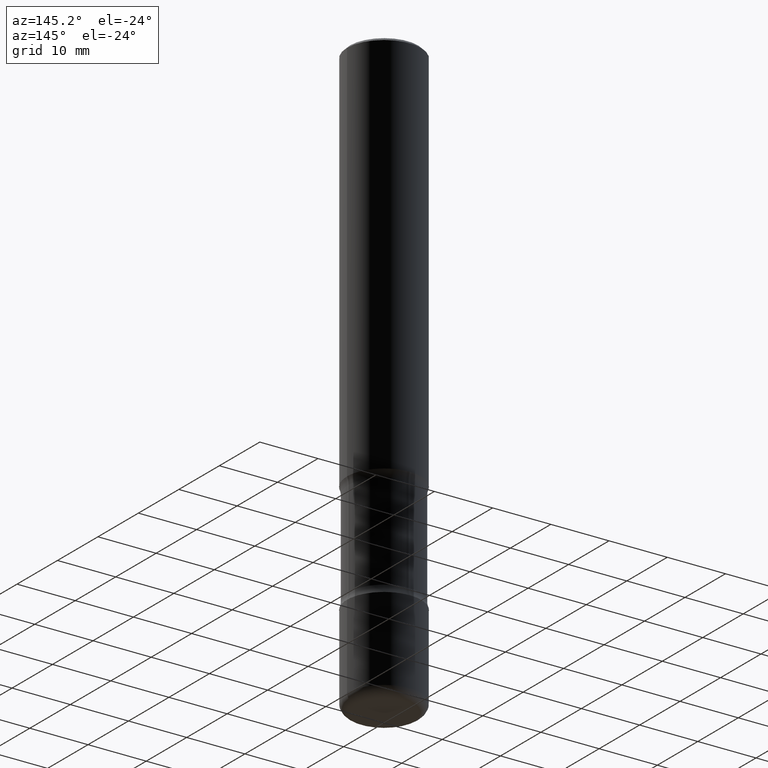
[diagram: clean part render]
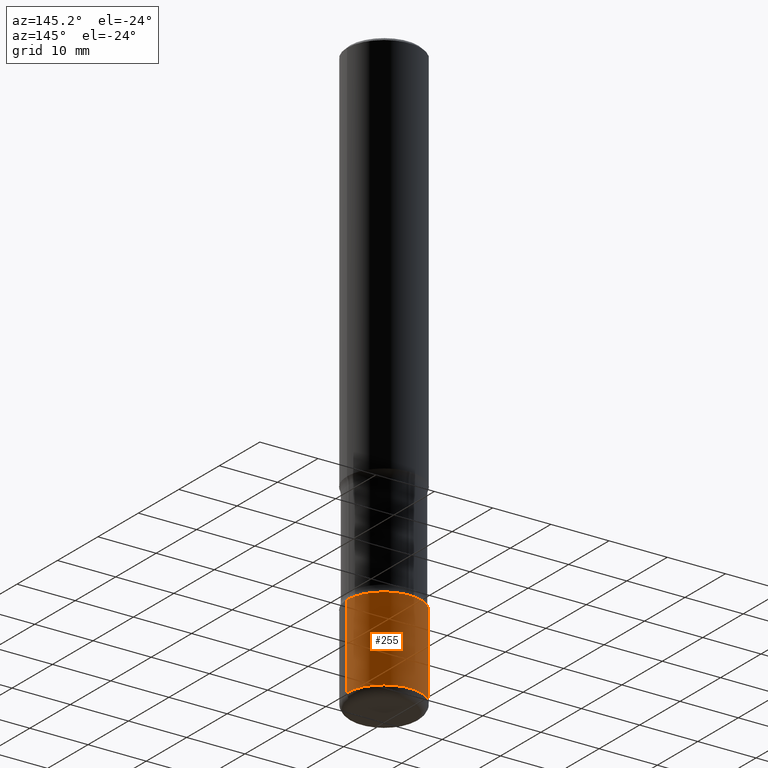
[diagram: same view with one face highlighted and labeled with its STEP entity id]
A machine part, auxiliary view. The second image highlights one B-rep face of the part: STEP entity #255.
In plain terms, the highlighted cylindrical surface (partial cylindrical patch) has radius 6.35 mm, axis along (-0, 0, 1).
Its self-contained STEP definition (entity closure, byte-faithful):
#10 = CARTESIAN_POINT ( 'NONE',  ( 0.000000000000000000, 0.000000000000000000, 0.000000000000000000 ) ) ;
#33 = DIRECTION ( 'NONE',  ( -2.445468806185136597E-29, 3.491481338843145583E-15, 1.000000000000000000 ) ) ;
#40 = DIRECTION ( 'NONE',  ( 1.000000000000000000, -6.982962677686262766E-15, 0.000000000000000000 ) ) ;
#92 = CARTESIAN_POINT ( 'NONE',  ( 8.253457220874836014E-29, -1.178374951859561452E-14, -3.375000000000000000 ) ) ;
#95 = VERTEX_POINT ( 'NONE', #560 ) ;
#100 = DIRECTION ( 'NONE',  ( -2.445468806185136877E-29, 3.491481338843145188E-15, 1.000000000000000000 ) ) ;
#144 = EDGE_CURVE ( 'NONE', #512, #95, #575, .T. ) ;
#161 = CARTESIAN_POINT ( 'NONE',  ( -0.2500000000000000000, 1.776356839400250465E-15, -1.229733772563726445E-29 ) ) ;
#202 = ORIENTED_EDGE ( 'NONE', *, *, #419, .T. ) ;
#214 = ORIENTED_EDGE ( 'NONE', *, *, #144, .T. ) ;
#237 = AXIS2_PLACEMENT_3D ( 'NONE', #501, #803, #431 ) ;
#255 = ADVANCED_FACE ( 'NONE', ( #764 ), #268, .T. ) ;
#261 = VECTOR ( 'NONE', #100, 39.37007874015748143 ) ;
#268 = CYLINDRICAL_SURFACE ( 'NONE', #734, 0.2500000000000000000 ) ;
#274 = AXIS2_PLACEMENT_3D ( 'NONE', #92, #33, #40 ) ;
#284 = ORIENTED_EDGE ( 'NONE', *, *, #727, .F. ) ;
#337 = EDGE_LOOP ( 'NONE', ( #214, #202, #378, #284 ) ) ;
#366 = EDGE_CURVE ( 'NONE', #587, #713, #669, .T. ) ;
#376 = CARTESIAN_POINT ( 'NONE',  ( -0.2500000000000000000, -1.099373615741855222E-14, -3.375000000000000000 ) ) ;
#378 = ORIENTED_EDGE ( 'NONE', *, *, #366, .F. ) ;
#381 = DIRECTION ( 'NONE',  ( -2.445468806185136877E-29, 3.491481338843145188E-15, 1.000000000000000000 ) ) ;
#419 = EDGE_CURVE ( 'NONE', #95, #713, #782, .T. ) ;
#431 = DIRECTION ( 'NONE',  ( 1.000000000000000000, -6.982962677686263555E-15, 0.000000000000000000 ) ) ;
#443 = DIRECTION ( 'NONE',  ( -2.445468806185136597E-29, 3.491481338843145583E-15, 1.000000000000000000 ) ) ;
#501 = CARTESIAN_POINT ( 'NONE',  ( 9.635147096369438236E-29, -1.375643647504199401E-14, -3.939999999999999947 ) ) ;
#506 = LINE ( 'NONE', #633, #553 ) ;
#510 = DIRECTION ( 'NONE',  ( 1.000000000000000000, -6.982962677686266711E-15, 4.876176775795935793E-29 ) ) ;
#512 = VERTEX_POINT ( 'NONE', #805 ) ;
#553 = VECTOR ( 'NONE', #381, 39.37007874015748143 ) ;
#560 = CARTESIAN_POINT ( 'NONE',  ( -0.2499999999999999167, -1.198007963564174513E-14, -3.939999999999999947 ) ) ;
#575 = CIRCLE ( 'NONE', #237, 0.2499999999999999722 ) ;
#587 = VERTEX_POINT ( 'NONE', #742 ) ;
#633 = CARTESIAN_POINT ( 'NONE',  ( 0.2500000000000000000, -1.745740669421566678E-15, 1.219044193948983948E-29 ) ) ;
#669 = CIRCLE ( 'NONE', #274, 0.2500000000000000000 ) ;
#713 = VERTEX_POINT ( 'NONE', #376 ) ;
#727 = EDGE_CURVE ( 'NONE', #512, #587, #506, .T. ) ;
#734 = AXIS2_PLACEMENT_3D ( 'NONE', #10, #443, #510 ) ;
#742 = CARTESIAN_POINT ( 'NONE',  ( 0.2500000000000000000, -1.352949018801718119E-14, -3.375000000000000000 ) ) ;
#764 = FACE_OUTER_BOUND ( 'NONE', #337, .T. ) ;
#782 = LINE ( 'NONE', #161, #261 ) ;
#803 = DIRECTION ( 'NONE',  ( -2.445468806185136597E-29, 3.491481338843145583E-15, 1.000000000000000000 ) ) ;
#805 = CARTESIAN_POINT ( 'NONE',  ( 0.2499999999999999167, -1.550217714446356069E-14, -3.939999999999999947 ) ) ;